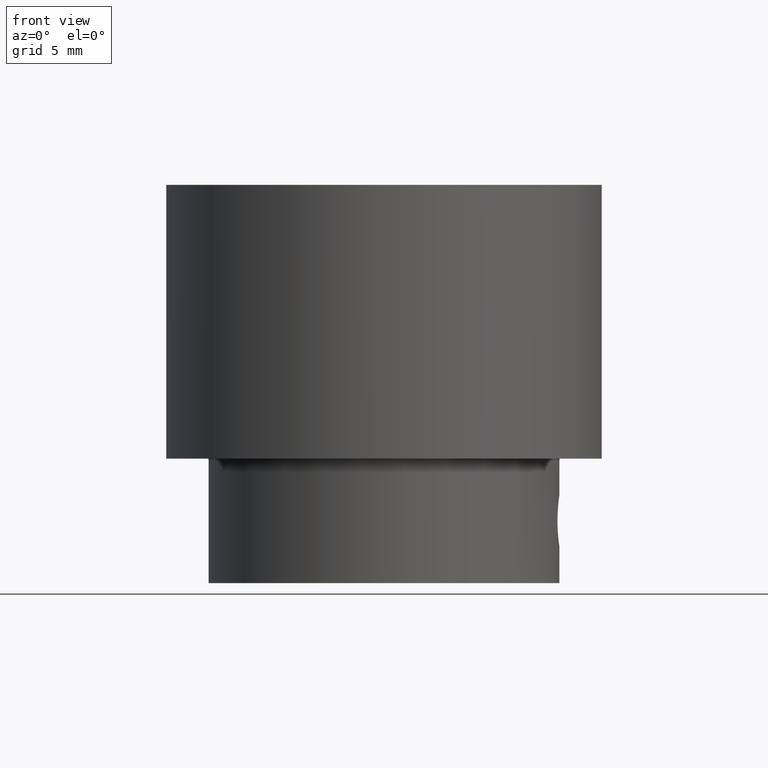
[diagram: clean part render]
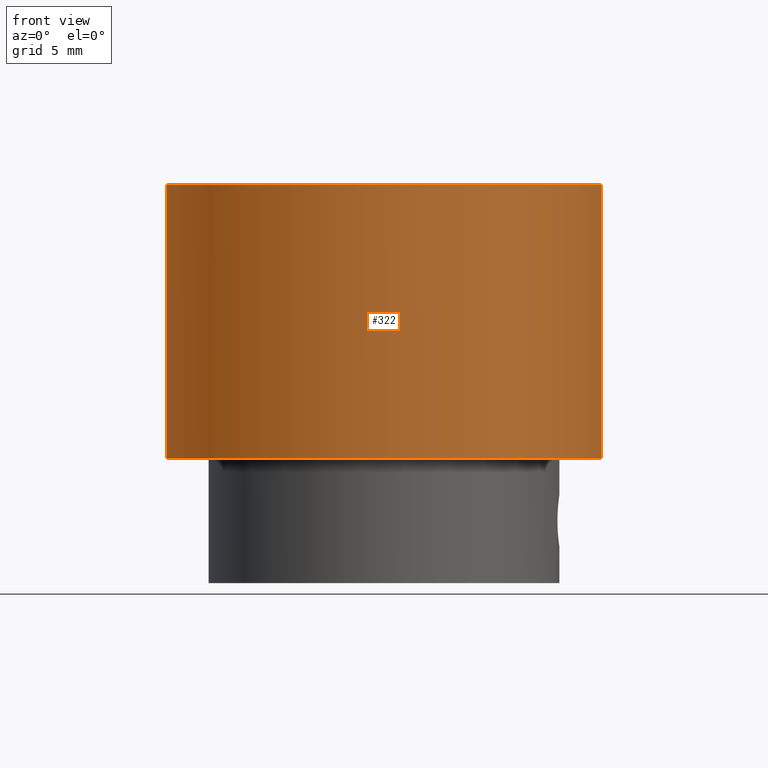
[diagram: same view with one face highlighted and labeled with its STEP entity id]
A machine part, front view. The second image highlights one B-rep face of the part: STEP entity #322.
In plain terms, the highlighted cylindrical surface (bore or boss wall) has radius 17.5 mm, axis along (-0, 0, -1).
Its self-contained STEP definition (entity closure, byte-faithful):
#322 = ADVANCED_FACE( '', ( #385, #386 ), #387, .T. );
#385 = FACE_OUTER_BOUND( '', #478, .T. );
#386 = FACE_OUTER_BOUND( '', #479, .T. );
#387 = CYLINDRICAL_SURFACE( '', #480, 17.5000000000000 );
#478 = EDGE_LOOP( '', ( #586 ) );
#479 = EDGE_LOOP( '', ( #587 ) );
#480 = AXIS2_PLACEMENT_3D( '', #588, #589, #590 );
#586 = ORIENTED_EDGE( '', *, *, #768, .T. );
#587 = ORIENTED_EDGE( '', *, *, #769, .F. );
#588 = CARTESIAN_POINT( '', ( 0.000000000000000, 0.000000000000000, -22.0000000000000 ) );
#589 = DIRECTION( '', ( -0.000000000000000, 0.000000000000000, -1.00000000000000 ) );
#590 = DIRECTION( '', ( 1.00000000000000, 0.000000000000000, 0.000000000000000 ) );
#768 = EDGE_CURVE( '', #836, #836, #837, .T. );
#769 = EDGE_CURVE( '', #838, #838, #839, .T. );
#836 = VERTEX_POINT( '', #1160 );
#837 = CIRCLE( '', #1161, 17.5000000000000 );
#838 = VERTEX_POINT( '', #1162 );
#839 = CIRCLE( '', #1163, 17.5000000000000 );
#1160 = CARTESIAN_POINT( '', ( 17.5000000000000, 0.000000000000000, -22.0000000000000 ) );
#1161 = AXIS2_PLACEMENT_3D( '', #1342, #1343, #1344 );
#1162 = CARTESIAN_POINT( '', ( 17.5000000000000, 0.000000000000000, 0.000000000000000 ) );
#1163 = AXIS2_PLACEMENT_3D( '', #1345, #1346, #1347 );
#1342 = CARTESIAN_POINT( '', ( 0.000000000000000, 0.000000000000000, -22.0000000000000 ) );
#1343 = DIRECTION( '', ( 0.000000000000000, 0.000000000000000, 1.00000000000000 ) );
#1344 = DIRECTION( '', ( 1.00000000000000, 0.000000000000000, 0.000000000000000 ) );
#1345 = CARTESIAN_POINT( '', ( 0.000000000000000, 0.000000000000000, 0.000000000000000 ) );
#1346 = DIRECTION( '', ( 0.000000000000000, 0.000000000000000, 1.00000000000000 ) );
#1347 = DIRECTION( '', ( 1.00000000000000, 0.000000000000000, 0.000000000000000 ) );